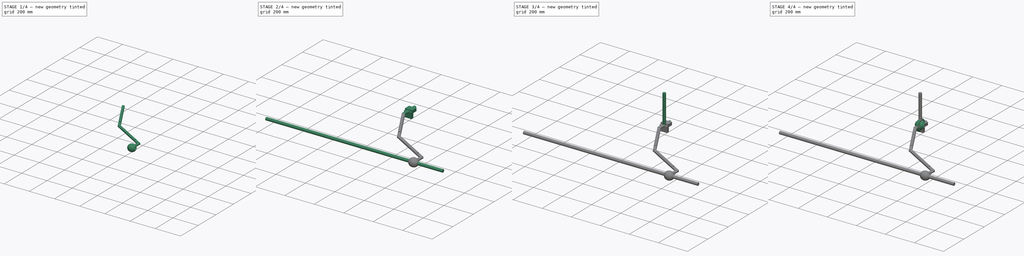
[diagram: build sequence overview — one tinted view per stage of 4, left to right]
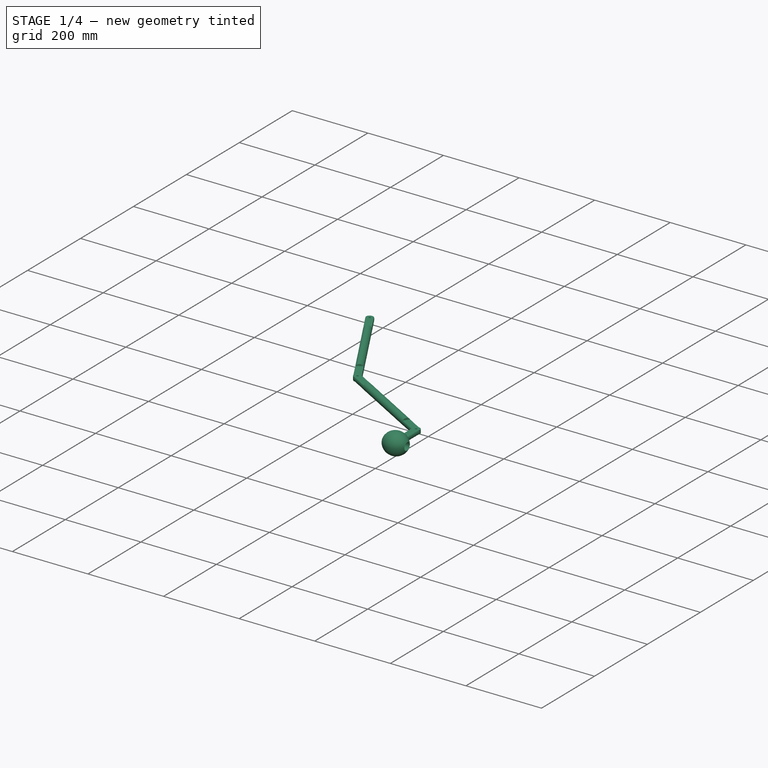
[diagram: stage 1 of 4 — iso view after this stage's code; geometry added in this stage tinted green]
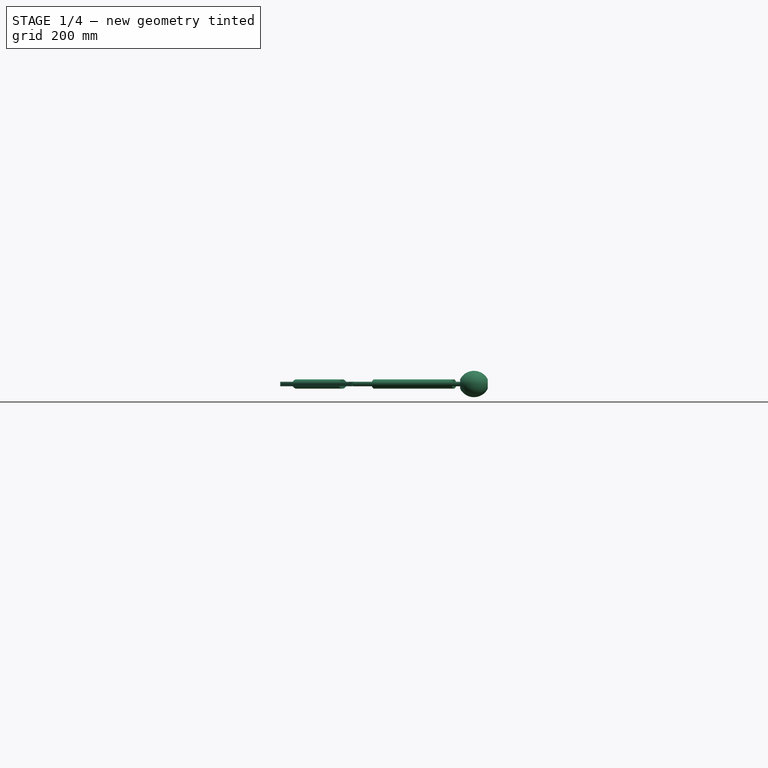
[diagram: stage 1 of 4 — front view after this stage's code; geometry added in this stage tinted green]
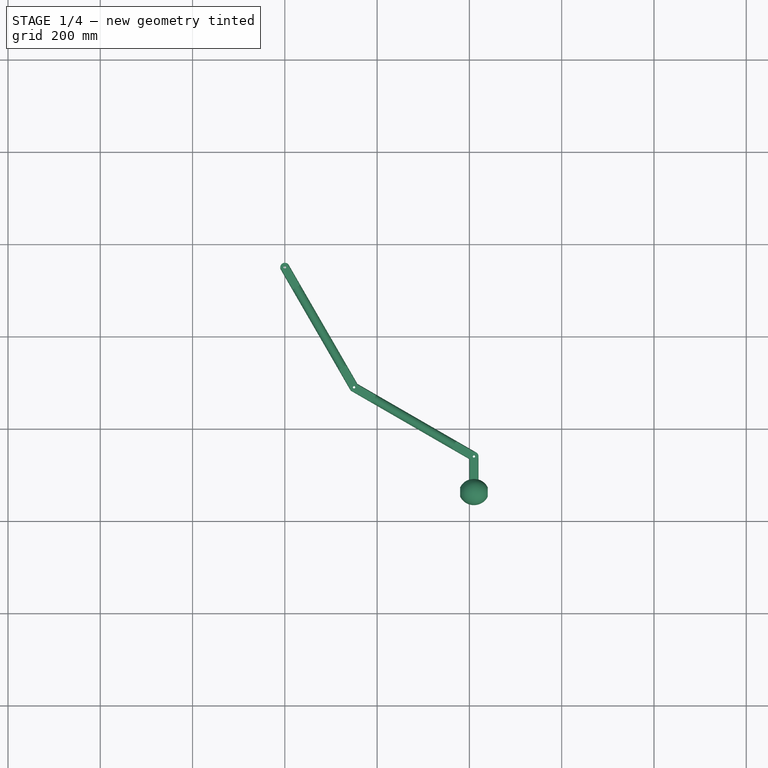
[diagram: stage 1 of 4 — top view after this stage's code; geometry added in this stage tinted green]
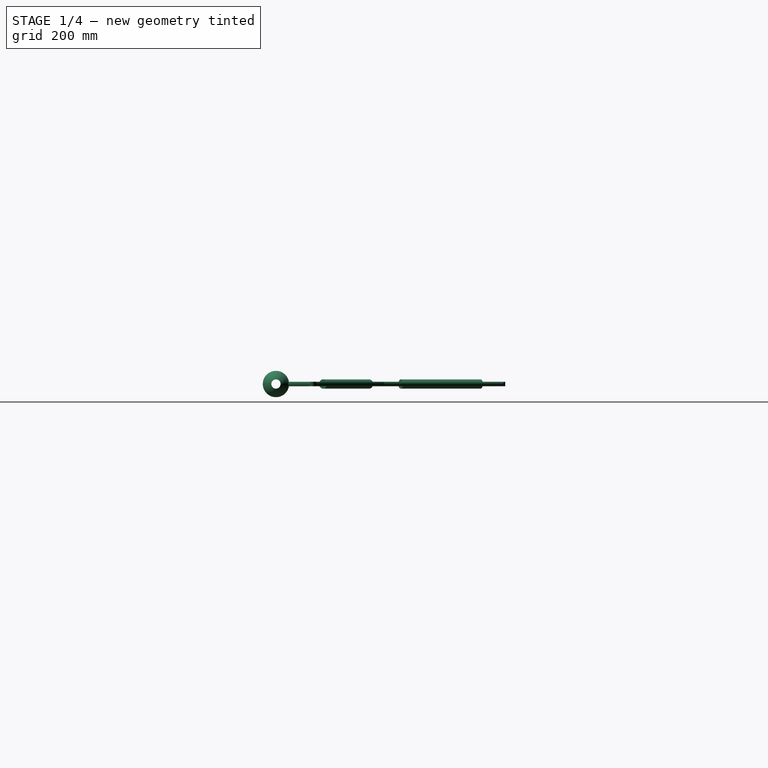
[diagram: stage 1 of 4 — right view after this stage's code; geometry added in this stage tinted green]
FCSTD DOCUMENT  (FreeCAD 0.21R33771 (Git))
Label: Demo7Rigid
License: All rights reserved
LicenseURL: http://en.wikipedia.org/wiki/All_rights_reserved
objects: App::Link×16, PartDesign::CoordinateSystem×13, Part::FeaturePython×10, Sketcher::SketchObject×7, PartDesign::Body×7, PartDesign::Pad×5, App::DocumentObjectGroup×3, PartDesign::Revolution×2, PartDesign::Boolean×1, App::FeaturePython×1, App::Part×1, App::DocumentObjectGroupPython×1
note: 52 computed .brp shape members not serialized (recipe doc carries the construction recipe); baked Part::Feature solids carry a one-line shape summary decoded from their .brp

FEATURE [Part::FeaturePython] DapBody001  label="PendulumRod"  # WARN: FeaturePython — macro-defined, semantics opaque (R4)
  Mass = 0.084669
  ass4SolidsLabels = LugPendulumTop | Pendulum | LugPendulumBot
  ass4SolidsNames = LugPendulumTop | Pendulum | LugPendulumBot
  centreOfGravity = (75,-179.904,0)
  momentInertia = 579.516
  phiDot = 0
  pointLabels = LugPendulumTop-{LugHole}-{LugRot30}-LugPendulumTop-{LugRot60} | LugPendulumTop-{LugFace}-Pendulum-{RodTop} | Pendulum-{Pendulum}-{RodBottom}-LugPendulumBot-{LugPendulumBot}-{LugFace} | LugPendulumBot-{LugHole}-{LugRot30}-LugPendulumBot-{LugRot60}
  pointLocals = (4) [(0,50,5),(0,1.518e-31,3.3396e-47),(-7.10543e-15,-200,-1.64652e-14),(-3.55271e-14,-250,5)]
  pointNames = LugPendulumTop-{LugHole}-{LugRot30}-LugPendulumTop-{LugRot60} | LugPendulumTop-{LugFace}-Pendulum-{RodTop} | Pendulum-{Pendulum}-{RodBottom}-LugPendulumBot-{LugPendulumBot}-{LugFace} | LugPendulumBot-{LugHole}-{LugRot30}-LugPendulumBot-{LugRot60}
  weightVector = (0,-830.603,0)
  world = pos=(25,-93.3013,4.53e-14) rot=(0.258819,-0.965926,0;3.14159rad)
  worldDot = (0,0,0)
FEATURE [Part::FeaturePython] DapBody002  label="PushRod"  # WARN: FeaturePython — macro-defined, semantics opaque (R4)
  Mass = 0.084669
  ass4SolidsLabels = LugPushrodTop | Pushrod | LugPushRodBot
  ass4SolidsNames = LugPushrodTop | Pushrod | LugPushRodBot
  centreOfGravity = (279.904,-384.808,0)
  momentInertia = 579.516
  phiDot = 0
  pointLabels = LugPushrodTop-{LugHole}-{LugRot30}-LugPushrodTop-{LugRot60} | LugPushrodTop-{LugFace}-Pushrod-{RodTop} | Pushrod-{Pushrod}-{RodBottom}-LugPushRodBot-{LugPushRodBot}-{LugFace} | LugPushRodBot-{LugHole}-{LugRot30}-LugPushRodBot-{LugRot60}
  pointLocals = (4) [(0,50,5),(0,1.518e-31,3.3396e-47),(1.13687e-13,-200,-3.50804e-14),(1.7053e-13,-250,5)]
  pointNames = LugPushrodTop-{LugHole}-{LugRot30}-LugPushrodTop-{LugRot60} | LugPushrodTop-{LugFace}-Pushrod-{RodTop} | Pushrod-{Pushrod}-{RodBottom}-LugPushRodBot-{LugPushRodBot}-{LugFace} | LugPushRodBot-{LugHole}-{LugRot30}-LugPushRodBot-{LugRot60}
  weightVector = (0,-830.603,0)
  world = pos=(193.301,-334.808,1.661e-13) rot=(-0.5,0.866025,0;3.14159rad)
  worldDot = (0,0,0)
FEATURE [Part::FeaturePython] DapBody003  label="Slider"  # WARN: FeaturePython — macro-defined, semantics opaque (R4)
  Mass = 0.0990232
  ass4SolidsLabels = LugWeight | SlideWeight
  ass4SolidsNames = LugWeight | SlideWeight
  centreOfGravity = (409.808,-530.666,0)
  momentInertia = 65.9056
  phiDot = 0
  pointLabels = LugWeight-{LugHole}-{LugRot30}-LugWeight-{LugRot60} | LugWeight-{LugFace} | SlideWeight-{SlideWeight}-{WeightLCS} | SlideWeight-{WeightTop} | SlideWeight-{WeightBot}
  pointLocals = (5) [(0,50,5),(0,1.518e-31,3.3396e-47),(0,-27,-3.2e-15),(30,-27,-1.11098e-14),(-30,-27,2.93342e-15)]
  pointNames = LugWeight-{LugHole}-{LugRot30}-LugWeight-{LugRot60} | LugWeight-{LugFace} | SlideWeight-{SlideWeight}-{WeightLCS} | SlideWeight-{WeightTop} | SlideWeight-{WeightBot}
  weightVector = (0,-971.418,0)
  world = pos=(409.808,-509.808,2.958e-13) rot=(0,-1,0;3.14159rad)
  worldDot = (0,0,0)
FEATURE [Part::FeaturePython] DapMaterial  # WARN: FeaturePython — macro-defined, semantics opaque (R4)
  kgm3ORgcm3 = true
  materialsDensityList = [1000,1000,1000,1000,1000,1000,1000,1000,1000,1000,1000,1000,1000,1000,1000,1000]
  materialsNameList = Default | Default | Default | Default | Default | Default | Default | Default | Default | Default | Default | Default | Default | Default | Default | Default
  solidsNameList = GroundStationary | LugGround | LugPendulumTop | Pendulum | LugPendulumBot | LugPushrodTop | Pushrod | LugPushRodBot | LugWeight | SlideWeight | RodA | RodB | RodC | RodD | RodE | RodF
FEATURE [Part::FeaturePython] DapForce  # WARN: FeaturePython — macro-defined, semantics opaque (R4)
  DampingCoeff = 0
  ForceMagnitude = 0
  LengthAngle0 = 0
  Stiffness = 0
  TorqueMagnitude = 0
  actuatorType = 0
  body_I_Index = 0
  body_I_Label = DapBody
  body_I_Name = DapBody
  body_J_Index = 0
  body_J_Label = DapBody
  body_J_Name = DapBody
  constLocalForce = (0,0,0)
  constTorque = 0
  constWorldForce = (0,0,0)
  newForce = false
  point_I_i_Index = 0
  point_I_i_Label = GroundStationary-{GroundLCS}-LugGround-{LugGround}-{LugFace}
  point_I_i_Name = GroundStationary-{GroundLCS}-LugGround-{LugGround}-{LugFace}
  point_J_i_Index = 0
  point_J_i_Label = GroundStationary-{GroundLCS}-LugGround-{LugGround}-{LugFace}
  point_J_i_Name = GroundStationary-{GroundLCS}-LugGround-{LugGround}-{LugFace}
  point_J_j_Index = 0
FEATURE [Part::FeaturePython] DapJoint  # Assembly joint (typed FeaturePython)
  Coeff0 = 0
  Coeff1 = 0
  Coeff2 = 0
  Coeff3 = 0
  Coeff4 = 0
  Coeff5 = 0
  FunctType = -1
  JointNumber = 0
  JointType = 4 (Ball)
  Radius = -1
  body_I_Index = 2
  body_I_Label = PushRod
  body_I_Name = DapBody002
  body_J_Index = 3
  body_J_Label = Slider
  body_J_Name = DapBody003
  d0 = (145.858,129.904,0)
  endDerivativeDriveFunc = 0
  endTimeDriveFunc = 0
  endValueDriveFunc = 0
  fixDof = false
  lengthLink = -1.137e-13
  mConstraints = 3
  nMovBodies = 2
  phi0 = -2.0944
  point_I_i_Index = 3
  point_I_i_Label = LugPushRodBot-{LugHole}-{LugRot30}-LugPushRodBot-{LugRot60}
  point_I_i_Name = LugPushRodBot-{LugHole}-{LugRot30}-LugPushRodBot-{LugRot60}
  point_I_j_Index = -1
  point_J_i_Index = 0
  point_J_i_Label = LugWeight-{LugHole}-{LugRot30}-LugWeight-{LugRot60}
  point_J_i_Name = LugWeight-{LugHole}-{LugRot30}-LugWeight-{LugRot60}
  point_J_j_Index = -1
  rowEnd = 3
  rowStart = 0
  startTimeDriveFunc = 0
  startValueDriveFunc = 0
  world0 = (0,0,0)
FEATURE [Part::FeaturePython] DapJoint001  # Assembly joint (typed FeaturePython)
  Coeff0 = 0
  Coeff1 = 0
  Coeff2 = 0
  Coeff3 = 0
  Coeff4 = 0
  Coeff5 = 0
  FunctType = -1
  JointNumber = 1
  JointType = 0 (Fixed)
  Radius = -1
  body_I_Index = 0
  body_I_Label = Stationary
  body_I_Name = DapBody
  body_J_Index = 1
  body_J_Label = PendulumRod
  body_J_Name = DapBody001
  d0 = (0,0,0)
  endDerivativeDriveFunc = 0
  endTimeDriveFunc = 0
  endValueDriveFunc = 0
  fixDof = false
  lengthLink = 0
  mConstraints = 2
  nMovBodies = 2
  phi0 = -1
  point_I_i_Index = 1
  point_I_i_Label = LugGround-{LugHole}-{LugRot30}-LugGround-{LugRot60}
  point_I_i_Name = LugGround-{LugHole}-{LugRot30}-LugGround-{LugRot60}
  point_I_j_Index = -1
  point_J_i_Index = 0
  point_J_i_Label = LugPendulumTop-{LugHole}-{LugRot30}-LugPendulumTop-{LugRot60}
  point_J_i_Name = LugPendulumTop-{LugHole}-{LugRot30}-LugPendulumTop-{LugRot60}
  point_J_j_Index = -1
  rowEnd = 5
  rowStart = 3
  startTimeDriveFunc = 0
  startValueDriveFunc = 0
  world0 = (0,0,0)
FEATURE [Part::FeaturePython] DapJoint002  # Assembly joint (typed FeaturePython)
  Coeff0 = 0
  Coeff1 = 0
  Coeff2 = 0
  Coeff3 = 0
  Coeff4 = 0
  Coeff5 = 0
  FunctType = -1
  JointNumber = 2
  JointType = 0 (Fixed)
  Radius = -1
  body_I_Index = 1
  body_I_Label = PendulumRod
  body_I_Name = DapBody001
  body_J_Index = 2
  body_J_Label = PushRod
  body_J_Name = DapBody002
  d0 = (0,0,0)
  endDerivativeDriveFunc = 0
  endTimeDriveFunc = 0
  endValueDriveFunc = 0
  fixDof = false
  lengthLink = 5.68e-14
  mConstraints = 2
  nMovBodies = 2
  phi0 = -1
  point_I_i_Index = 3
  point_I_i_Label = LugPendulumBot-{LugHole}-{LugRot30}-LugPendulumBot-{LugRot60}
  point_I_i_Name = LugPendulumBot-{LugHole}-{LugRot30}-LugPendulumBot-{LugRot60}
  point_I_j_Index = -1
  point_J_i_Index = 0
  point_J_i_Label = LugPushrodTop-{LugHole}-{LugRot30}-LugPushrodTop-{LugRot60}
  point_J_i_Name = LugPushrodTop-{LugHole}-{LugRot30}-LugPushrodTop-{LugRot60}
  point_J_j_Index = -1
  rowEnd = 7
  rowStart = 5
  startTimeDriveFunc = 0
  startValueDriveFunc = 0
  world0 = (0,0,0)
FEATURE [Part::FeaturePython] DapSolver  # WARN: FeaturePython — macro-defined, semantics opaque (R4)
  BodyCoG = (3) [(75,-179.904,0),(279.904,-384.808,0),(409.808,-530.666,0)]
  BodyNames = DapBody001 | DapBody002 | DapBody003
  DapResultsValid = true
  DeltaTime = 0.1
  Directory = <userpath>/Desktop
  FileName = -
  TimeLength = 10
FEATURE [App::DocumentObjectGroupPython] DapContainer  # scripted group (container) (typed FeaturePython)
  Group = -> [DapBody,DapBody001,DapBody002,DapBody003,DapMaterial,DapForce,DapJoint,DapJoint001,DapJoint002,DapSolver]
  activeContainer = true
  gravityValid = true
  gravityVector = (0,-9810,0)
  movementPlaneNormal = (0,0,1)
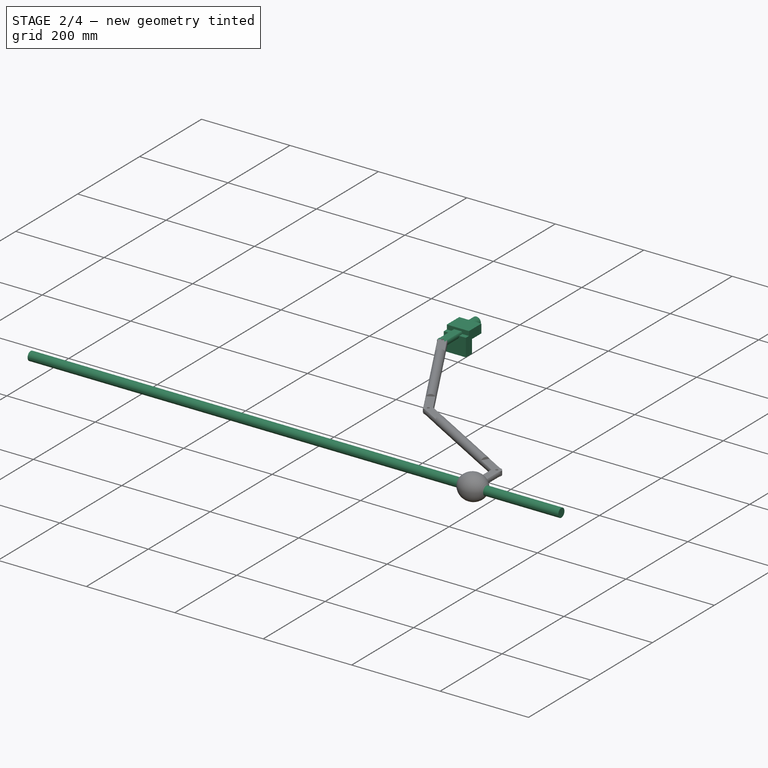
[diagram: stage 2 of 4 — iso view after this stage's code; geometry added in this stage tinted green]
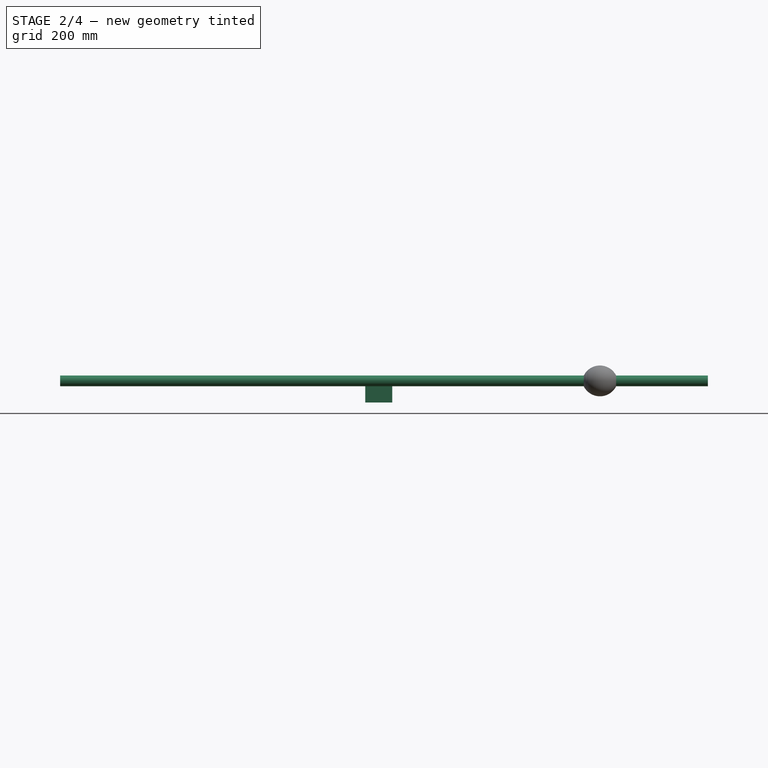
[diagram: stage 2 of 4 — front view after this stage's code; geometry added in this stage tinted green]
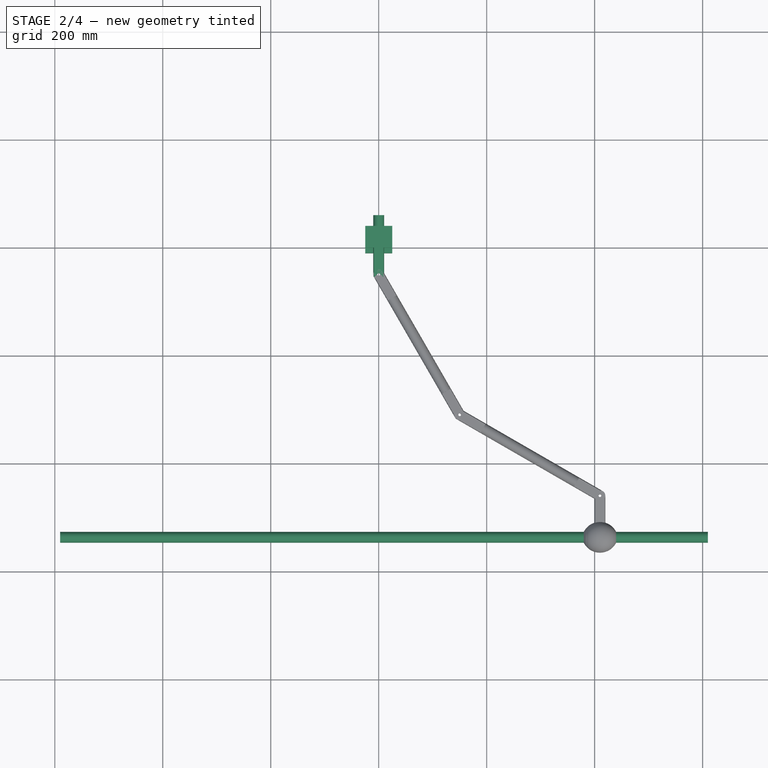
[diagram: stage 2 of 4 — top view after this stage's code; geometry added in this stage tinted green]
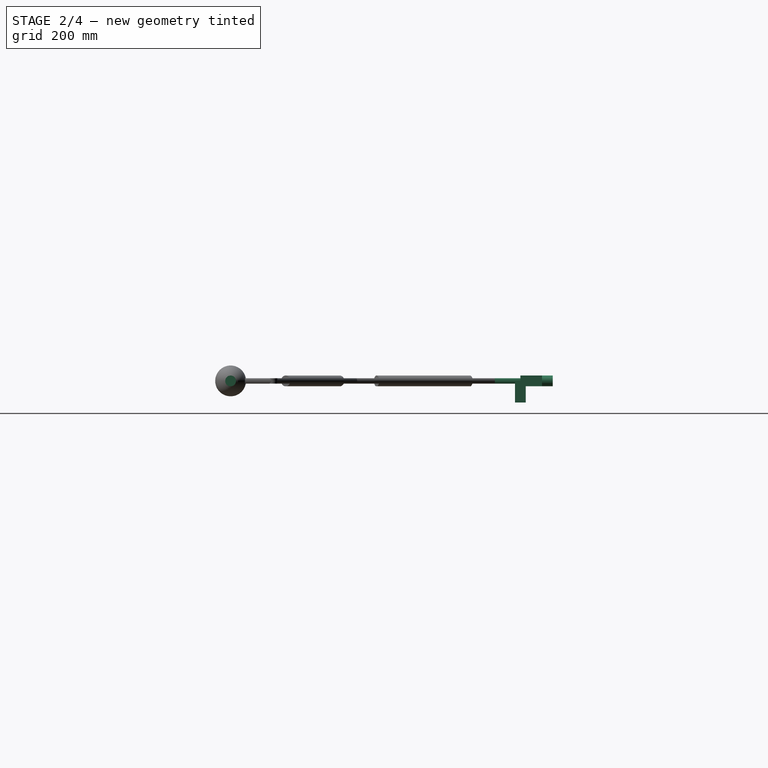
[diagram: stage 2 of 4 — right view after this stage's code; geometry added in this stage tinted green]
FEATURE [PartDesign::Body] Body002  label="LugBody"
  Group = -> [Sketch002,Pad001]
  Origin = -> Origin002
  Tip = -> Pad001
FEATURE [Sketcher::SketchObject] Sketch003
  FullyConstrained = true
  MapMode = 5
  Placement = pos=(0,0,0) rot=(1,0,0;1.5708rad)
  Support = -> [XZ_Plane003]
  sketch-geometry (1):
    g0: Circle CenterX=0 CenterY=0 CenterZ=0 NormalX=0 NormalY=0 NormalZ=1 AngleXU=0 Radius=10
  constraints (2):
    c: Coincident(g0,g-1)
    c: Diameter(g0) = 20
FEATURE [PartDesign::Pad] Pad002
  Direction = (0,-1,-2e-16)
  Length = 60
  Length2 = 10
  Placement = pos=(0,0,0) rot=(1,0,0;1.5708rad)
  Profile = -> Sketch003
  ReferenceAxis = -> Sketch003 [N_Axis]
  Reversed = true
  Type = 0
FEATURE [Sketcher::SketchObject] Sketch005
  FullyConstrained = true
  MapMode = 5
  Support = -> [XY_Plane005]
  sketch-geometry (4):
    g0: LineSegment StartX=-25 StartY=10 StartZ=0 EndX=25 EndY=10 EndZ=0
    g1: LineSegment StartX=25 StartY=10 StartZ=0 EndX=25 EndY=-10 EndZ=0
    g2: LineSegment StartX=25 StartY=-10 StartZ=0 EndX=-25 EndY=-10 EndZ=0
    g3: LineSegment StartX=-25 StartY=-10 StartZ=0 EndX=-25 EndY=10 EndZ=0
  constraints (11):
    c: Coincident(g0,g1)
    c: Coincident(g1,g2)
    c: Coincident(g2,g3)
    c: Coincident(g3,g0)
    c: Horizontal(g0)
    c: Horizontal(g2)
    c: Vertical(g1)
    c: Vertical(g3)
    c: DistanceY(g2,g0) = 20
    c: DistanceX(g0,g0) = 50
    c: Symmetric(g0,g1,g-1)
FEATURE [PartDesign::Pad] Pad003
  Direction = (0,0,1)
  Length = 40
  Length2 = 10
  Profile = -> Sketch005
  ReferenceAxis = -> Sketch005 [N_Axis]
  Reversed = true
  Type = 0
FEATURE [PartDesign::CoordinateSystem] SpacerTop
  AttacherType = Attacher::AttachEngine3D
  MapMode = 11
  Placement = pos=(0,0,20) rot=(0,0,1;1.5708rad)
  Support = -> [Pad004]
FEATURE [PartDesign::Body] Body006  label="Spacer"
  Group = -> [Sketch006,Pad004,SpacerTop]
  Origin = -> Origin007
  Tip = -> Pad004
FEATURE [PartDesign::CoordinateSystem] WeightTop
  AttacherType = Attacher::AttachEngine3D
  MapMode = 11
  Placement = pos=(30,-1.8e-15,0) rot=(0.707107,0,0.707107;3.14159rad)
  Support = -> [Revolution]
FEATURE [PartDesign::CoordinateSystem] WeightBot
  AttacherType = Attacher::AttachEngine3D
  MapMode = 11
  Placement = pos=(-30,0,0) rot=(0.707107,0,0.707107;3.14159rad)
  Support = -> [Revolution]
FEATURE [PartDesign::CoordinateSystem] LugRot30
  AttacherType = Attacher::AttachEngine3D
  AttachmentOffset = pos=(0,0,0) rot=(0,0,1;0.523599rad)
  MapMode = 11
  Placement = pos=(0,50,5) rot=(0,0,1;2.0944rad)
  Support = -> [Boolean]
FEATURE [PartDesign::CoordinateSystem] LugRot60
  AttacherType = Attacher::AttachEngine3D
  AttachmentOffset = pos=(0,0,0) rot=(0,0,1;1.0472rad)
  MapMode = 11
  Placement = pos=(0,50,5) rot=(0,0,1;2.61799rad)
  Support = -> [Boolean]
FEATURE [PartDesign::Body] Body003  label="LugCylinder"
  Group = -> [Sketch003,Pad002,Boolean,LugHole,LugFace,LugRot30,LugRot60]
  Origin = -> Origin003
  Tip = -> Boolean
FEATURE [PartDesign::CoordinateSystem] WeightLCS
  AttacherType = Attacher::AttachEngine3D
  MapMode = 2
  Support = -> [Body003]
FEATURE [PartDesign::Body] Body  label="Weight"
  Group = -> [Sketch,Revolution,WeightLCS,WeightTop,WeightBot]
  Origin = -> Origin
  Tip = -> Revolution
FEATURE [App::DocumentObjectGroup] Parts
  Group = -> [Body,Body001,Body003,Body004,Body005,Body006]
FEATURE [PartDesign::CoordinateSystem] LCS_Origin
  AttacherType = Attacher::AttachEngine3D
  MapMode = 2
  Support = -> [X_Axis008]
FEATURE [App::DocumentObjectGroup] Constraints
FEATURE [App::FeaturePython] Variables  # WARN: FeaturePython — macro-defined, semantics opaque (R4)
  Type = App::PropertyContainer
FEATURE [App::DocumentObjectGroup] Configurations
FEATURE [App::Link] GroundStationary
  AttachedBy = #GroundLCS
  AttachedTo = Parent Assembly#LCS_Origin
  AttachmentOffset = pos=(0,0,0) rot=(1,0,0;1.5708rad)
  LinkPlacement = pos=(0,40,-6.4e-15) rot=(-1,0,0;1.5708rad)
  LinkedObject = -> Body005
  Placement = pos=(0,40,-6.4e-15) rot=(-1,0,0;1.5708rad)
  SolverId = Asm4EE
  expr: Placement = LCS_Origin.Placement * AttachmentOffset * GroundLCS.Placement ^ -1
FEATURE [App::Link] LugGround
  AttachedBy = #LugFace
  AttachedTo = GroundStationary#GroundLCS
  AttachmentOffset = pos=(0,0,0) rot=(1,0,0;3.14159rad)
  LinkPlacement = pos=(0,0,2.4e-15) rot=(1,0,0;3.14159rad)
  LinkedObject = -> Body003
  Placement = pos=(0,0,2.4e-15) rot=(1,0,0;3.14159rad)
  SolverId = Asm4EE
  expr: Placement = GroundStationary.Placement * GroundLCS.Placement * AttachmentOffset * LugFace.Placement ^ -1
FEATURE [App::Link] LugPendulumTop
  AttachedBy = #LugHole
  AttachedTo = LugGround#LugRot60
  AttachmentOffset = pos=(0,0,0) rot=(0,0,1;1.5708rad)
  LinkPlacement = pos=(25,-93.3013,4.53e-14) rot=(0.258819,-0.965926,0;3.14159rad)
  LinkedObject = -> Body003
  Placement = pos=(25,-93.3013,4.53e-14) rot=(0.258819,-0.965926,0;3.14159rad)
  SolverId = Asm4EE
  expr: Placement = LugGround.Placement * LugRot60.Placement * AttachmentOffset * LugHole.Placement ^ -1
FEATURE [App::Link] Pendulum
  AttachedBy = #RodTop
  AttachedTo = LugPendulumTop#LugFace
  AttachmentOffset = pos=(0,0,0) rot=(0,1,0;3.14159rad)
  LinkPlacement = pos=(125,-266.506,1.327e-13) rot=(-0.447214,-0.774597,-0.447214;1.82348rad)
  LinkedObject = -> Body001
  Placement = pos=(125,-266.506,1.327e-13) rot=(-0.447214,-0.774597,-0.447214;1.82348rad)
  SolverId = Asm4EE
  expr: Placement = LugPendulumTop.Placement * LugFace.Placement * AttachmentOffset * RodTop.Placement ^ -1
FEATURE [App::Link] LugPendulumBot
  AttachedBy = #LugFace
  AttachedTo = Pendulum#RodBottom
  LinkPlacement = pos=(125,-266.506,1.327e-13) rot=(-0.965926,-0.258819,0;3.14159rad)
  LinkedObject = -> Body003
  Placement = pos=(125,-266.506,1.327e-13) rot=(-0.965926,-0.258819,0;3.14159rad)
  SolverId = Asm4EE
  expr: Placement = Pendulum.Placement * RodBottom.Placement * AttachmentOffset * LugFace.Placement ^ -1
FEATURE [App::Link] LugPushrodTop
  AttachedBy = #LugHole
  AttachedTo = LugPendulumBot#LugRot60
  AttachmentOffset = pos=(0,0,0) rot=(0,0,1;1.5708rad)
  LinkPlacement = pos=(193.301,-334.808,1.661e-13) rot=(-0.5,0.866025,0;3.14159rad)
  LinkedObject = -> Body003
  Placement = pos=(193.301,-334.808,1.661e-13) rot=(-0.5,0.866025,0;3.14159rad)
  SolverId = Asm4EE
  expr: Placement = LugPendulumBot.Placement * LugRot60.Placement * AttachmentOffset * LugHole.Placement ^ -1
FEATURE [App::Link] Pushrod
  AttachedBy = #RodTop
  AttachedTo = LugPushrodTop#LugFace
  AttachmentOffset = pos=(0,0,0) rot=(0,1,0;3.14159rad)
  LinkPlacement = pos=(366.506,-434.808,2.383e-13) rot=(0.250563,0.935113,0.250563;4.64535rad)
  LinkedObject = -> Body001
  Placement = pos=(366.506,-434.808,2.383e-13) rot=(0.250563,0.935113,0.250563;4.64535rad)
  SolverId = Asm4EE
  expr: Placement = LugPushrodTop.Placement * LugFace.Placement * AttachmentOffset * RodTop.Placement ^ -1
FEATURE [App::Link] LugPushRodBot
  AttachedBy = #LugFace
  AttachedTo = Pushrod#RodBottom
  LinkPlacement = pos=(366.506,-434.808,2.383e-13) rot=(0.866025,0.5,0;3.14159rad)
  LinkedObject = -> Body003
  Placement = pos=(366.506,-434.808,2.383e-13) rot=(0.866025,0.5,0;3.14159rad)
  SolverId = Asm4EE
  expr: Placement = Pushrod.Placement * RodBottom.Placement * AttachmentOffset * LugFace.Placement ^ -1
FEATURE [App::Link] LugWeight
  AttachedBy = #LugRot60
  AttachedTo = LugPushRodBot#LugRot30
  AttachmentOffset = pos=(0,0,0) rot=(0,0,1;4.71239rad)
  LinkPlacement = pos=(409.808,-509.808,2.958e-13) rot=(0,-1,0;3.14159rad)
  LinkedObject = -> Body003
  Placement = pos=(409.808,-509.808,2.958e-13) rot=(0,-1,0;3.14159rad)
  SolverId = Asm4EE
  expr: Placement = LugPushRodBot.Placement * LugRot30.Placement * AttachmentOffset * LugRot60.Placement ^ -1
FEATURE [App::Link] SlideWeight
  AttachedBy = #WeightLCS
  AttachedTo = LugWeight#LugFace
  AttachmentOffset = pos=(0,0,27) rot=(0,0,1;0rad)
  LinkPlacement = pos=(409.808,-536.808,3.152e-13) rot=(0,-0.707107,0.707107;3.14159rad)
  LinkedObject = -> Body
  Placement = pos=(409.808,-536.808,3.152e-13) rot=(0,-0.707107,0.707107;3.14159rad)
  SolverId = Asm4EE
  expr: Placement = LugWeight.Placement * LugFace.Placement * AttachmentOffset * WeightLCS.Placement ^ -1
FEATURE [App::Link] RodA
  AttachedBy = #RodBottom
  AttachedTo = SlideWeight#WeightLCS
  AttachmentOffset = pos=(0,0,0) rot=(0,1,0;4.71239rad)
  LinkPlacement = pos=(409.808,-536.808,3.152e-13) rot=(-0.707107,0,-0.707107;3.14159rad)
  LinkedObject = -> Body001
  Placement = pos=(409.808,-536.808,3.152e-13) rot=(-0.707107,0,-0.707107;3.14159rad)
  SolverId = Asm4EE
  expr: Placement = SlideWeight.Placement * WeightLCS.Placement * AttachmentOffset * RodBottom.Placement ^ -1
FEATURE [App::Link] RodB
  AttachedBy = #RodTop
  AttachedTo = RodA#RodBottom
  LinkPlacement = pos=(209.808,-536.808,3.152e-13) rot=(-0.707107,0,-0.707107;3.14159rad)
  LinkedObject = -> Body001
  Placement = pos=(209.808,-536.808,3.152e-13) rot=(-0.707107,0,-0.707107;3.14159rad)
  SolverId = Asm4EE
  expr: Placement = RodA.Placement * RodBottom.Placement * AttachmentOffset * RodTop.Placement ^ -1
FEATURE [App::Link] RodC
  AttachedBy = #RodTop
  AttachedTo = RodB#RodBottom
  LinkPlacement = pos=(9.80762,-536.808,3.152e-13) rot=(-0.707107,0,-0.707107;3.14159rad)
  LinkedObject = -> Body001
  Placement = pos=(9.80762,-536.808,3.152e-13) rot=(-0.707107,0,-0.707107;3.14159rad)
  SolverId = Asm4EE
  expr: Placement = RodB.Placement * RodBottom.Placement * AttachmentOffset * RodTop.Placement ^ -1
FEATURE [App::Link] RodD
  AttachedBy = #RodTop
  AttachedTo = RodC#RodBottom
  LinkPlacement = pos=(-190.192,-536.808,3.152e-13) rot=(-0.707107,0,-0.707107;3.14159rad)
  LinkedObject = -> Body001
  Placement = pos=(-190.192,-536.808,3.152e-13) rot=(-0.707107,0,-0.707107;3.14159rad)
  SolverId = Asm4EE
  expr: Placement = RodC.Placement * RodBottom.Placement * AttachmentOffset * RodTop.Placement ^ -1
FEATURE [App::Link] RodE
  AttachedBy = #RodTop
  AttachedTo = RodD#RodBottom
  LinkPlacement = pos=(-390.192,-536.808,3.152e-13) rot=(-0.707107,0,-0.707107;3.14159rad)
  LinkedObject = -> Body001
  Placement = pos=(-390.192,-536.808,3.152e-13) rot=(-0.707107,0,-0.707107;3.14159rad)
  SolverId = Asm4EE
  expr: Placement = RodD.Placement * RodBottom.Placement * AttachmentOffset * RodTop.Placement ^ -1
FEATURE [App::Link] RodF
  AttachedBy = #RodTop
  AttachedTo = RodE#RodBottom
  LinkPlacement = pos=(-590.192,-536.808,3.152e-13) rot=(-0.707107,0,-0.707107;3.14159rad)
  LinkedObject = -> Body001
  Placement = pos=(-590.192,-536.808,3.152e-13) rot=(-0.707107,0,-0.707107;3.14159rad)
  SolverId = Asm4EE
  expr: Placement = RodE.Placement * RodBottom.Placement * AttachmentOffset * RodTop.Placement ^ -1
FEATURE [App::Part] Assembly
  AssemblyType = Part::Link
  Group = -> [LCS_Origin,Constraints,Variables,Configurations,GroundStationary,LugGround,LugPendulumTop,Pendulum,LugPendulumBot,LugPushrodTop,Pushrod,LugPushRodBot,LugWeight,SlideWeight,RodA,RodB,RodC,RodD,RodE,RodF]
  Origin = -> Origin008
  Type = Assembly
FEATURE [Part::FeaturePython] DapBody  label="Stationary"  # WARN: FeaturePython — macro-defined, semantics opaque (R4)
  Mass = 0.42791
  ass4SolidsLabels = GroundStationary | LugGround | RodA | RodB | RodC | RodD | RodE | RodF
  ass4SolidsNames = GroundStationary | LugGround | RodA | RodB | RodC | RodD | RodE | RodF
  centreOfGravity = (8.64058,-471.794,0)
  momentInertia = 58681.3
  phiDot = 0
  pointLabels = GroundStationary-{GroundLCS}-LugGround-{LugGround}-{LugFace} | LugGround-{LugHole}-{LugRot30}-LugGround-{LugRot60} | RodA-{RodA}-{RodBottom}-RodB-{RodTop} | RodA-{RodTop} | RodB-{RodB}-{RodBottom}-RodC-{RodTop} | RodC-{RodC}-{RodBottom}-RodD-{RodTop} | RodD-{RodD}-{RodBottom}-RodE-{RodTop} | RodE-{RodE}-{RodBottom}-RodF-{RodTop} | RodF-{RodF}-{RodBottom}
  pointLocals = (9) [(0,0,-40),(0,5,-90),(409.808,-1.93523e-13,-576.808),(609.808,-1.49114e-13,-576.808),(209.808,-1.93523e-13,-576.808),(9.80762,-1.93523e-13,-576.808),+3 more]
  pointNames = GroundStationary-{GroundLCS}-LugGround-{LugGround}-{LugFace} | LugGround-{LugHole}-{LugRot30}-LugGround-{LugRot60} | RodA-{RodA}-{RodBottom}-RodB-{RodTop} | RodA-{RodTop} | RodB-{RodB}-{RodBottom}-RodC-{RodTop} | RodC-{RodC}-{RodBottom}-RodD-{RodTop} | RodD-{RodD}-{RodBottom}-RodE-{RodTop} | RodE-{RodE}-{RodBottom}-RodF-{RodTop} | RodF-{RodF}-{RodBottom}
  weightVector = (0,-4197.79,0)
  world = pos=(0,40,-6.4e-15) rot=(-1,0,0;1.5708rad)
  worldDot = (0,0,0)
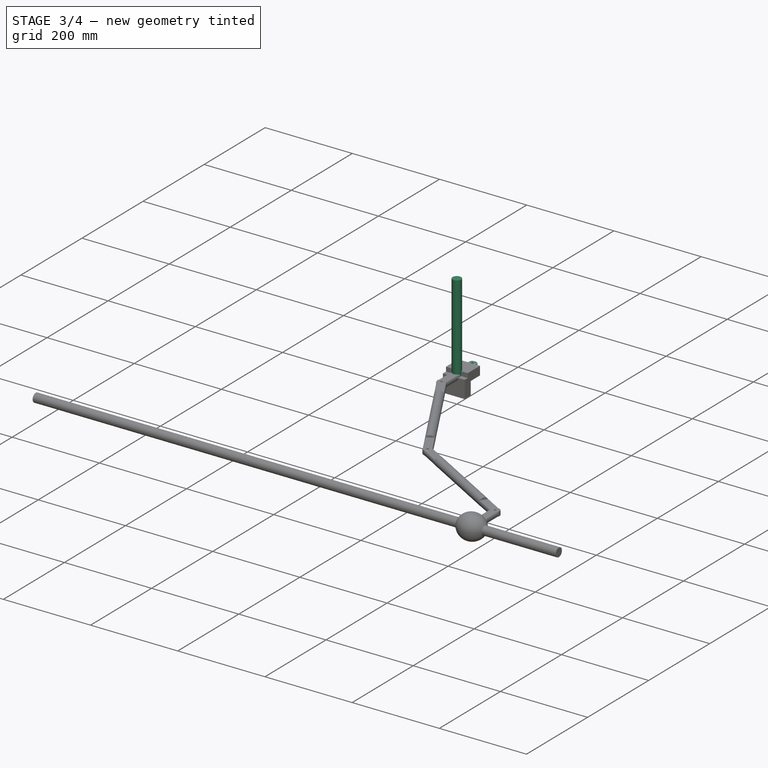
[diagram: stage 3 of 4 — iso view after this stage's code; geometry added in this stage tinted green]
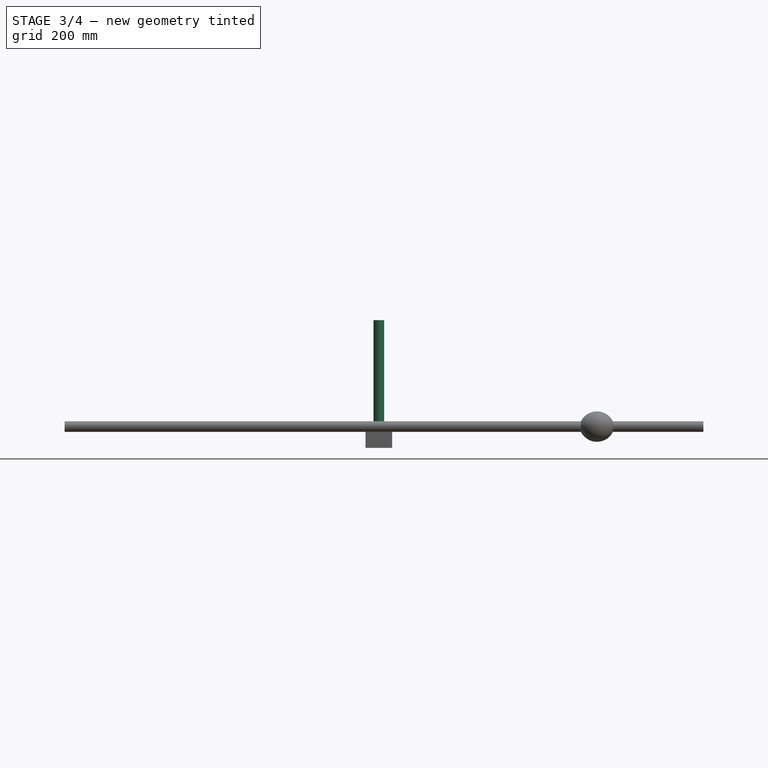
[diagram: stage 3 of 4 — front view after this stage's code; geometry added in this stage tinted green]
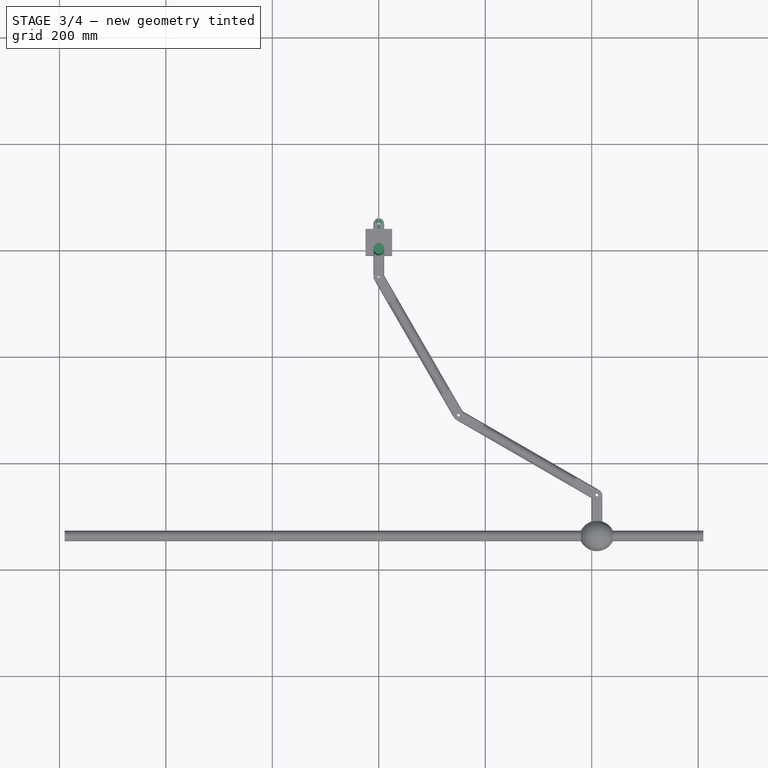
[diagram: stage 3 of 4 — top view after this stage's code; geometry added in this stage tinted green]
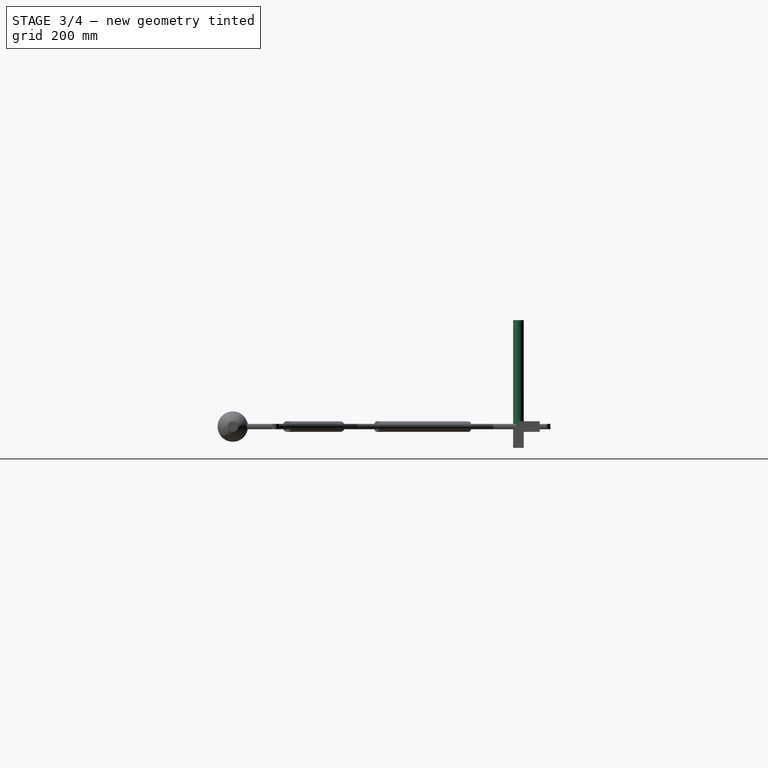
[diagram: stage 3 of 4 — right view after this stage's code; geometry added in this stage tinted green]
FEATURE [Sketcher::SketchObject] Sketch001
  FullyConstrained = true
  MapMode = 5
  Support = -> [XY_Plane001]
  sketch-geometry (1):
    g0: Circle CenterX=0 CenterY=0 CenterZ=0 NormalX=0 NormalY=0 NormalZ=1 AngleXU=0 Radius=10
  constraints (2):
    c: Coincident(g0,g-1)
    c: Diameter(g0) = 20
FEATURE [PartDesign::Pad] Pad
  Direction = (0,0,1)
  Length = 200
  Length2 = 10
  Profile = -> Sketch001
  ReferenceAxis = -> Sketch001 [N_Axis]
  Type = 0
FEATURE [Sketcher::SketchObject] Sketch002
  FullyConstrained = true
  MapMode = 5
  Support = -> [XY_Plane002]
  sketch-geometry (5):
    g0: LineSegment StartX=-10 StartY=0 StartZ=0 EndX=-10 EndY=50 EndZ=0
    g1: ArcOfCircle CenterX=0 CenterY=50 CenterZ=0 NormalX=0 NormalY=0 NormalZ=1 AngleXU=0 Radius=10 StartAngle=1e-16 EndAngle=3.14159
    g2: LineSegment StartX=10 StartY=50 StartZ=0 EndX=10 EndY=0 EndZ=0
    g3: LineSegment StartX=10 StartY=0 StartZ=0 EndX=-10 EndY=0 EndZ=0
    g4: Circle CenterX=0 CenterY=50 CenterZ=0 NormalX=0 NormalY=0 NormalZ=1 AngleXU=0 Radius=2.5
  constraints (13):
    c: PointOnObject(g0,g-1)
    c: Vertical(g0)
    c: Tangent(g0,g1) = 1.5708
    c: Tangent(g1,g2) = 1.5708
    c: Coincident(g2,g3)
    c: Coincident(g3,g0)
    c: Horizontal(g3)
    c: PointOnObject(g1,g-2)
    c: Vertical(g2)
    c: Diameter(g1) = 20
    c: Distance(g2) = 50
    c: Coincident(g4,g1)
    c: Diameter(g4) = 5
FEATURE [PartDesign::Pad] Pad001
  Direction = (0,0,1)
  Length = 10
  Length2 = 10
  Midplane = true
  Profile = -> Sketch002
  ReferenceAxis = -> Sketch002 [N_Axis]
  Type = 0
FEATURE [PartDesign::Boolean] Boolean
  BaseFeature = -> Pad002
  Group = -> [Body002]
  Type = 2
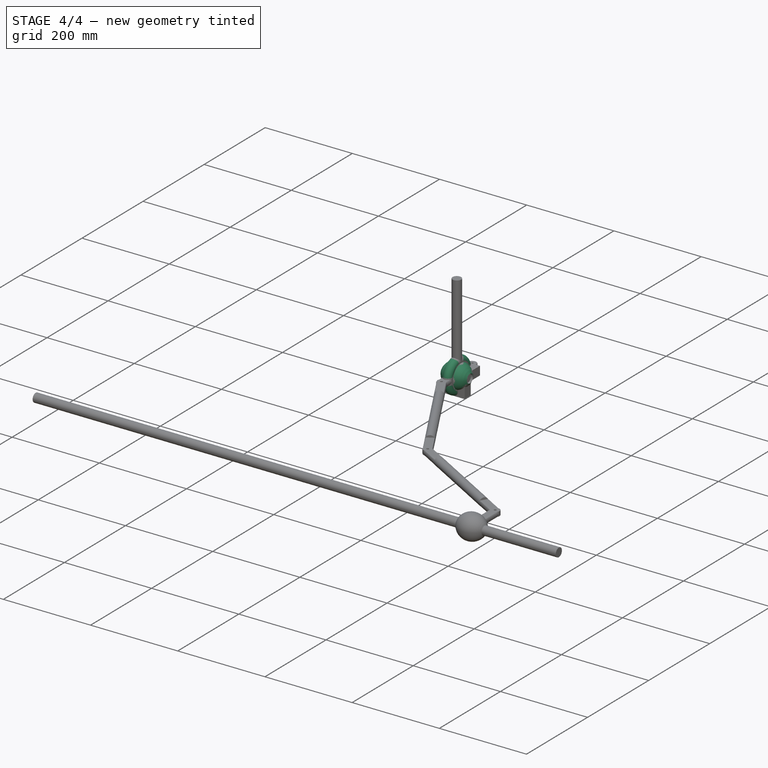
[diagram: stage 4 of 4 — iso view after this stage's code; geometry added in this stage tinted green]
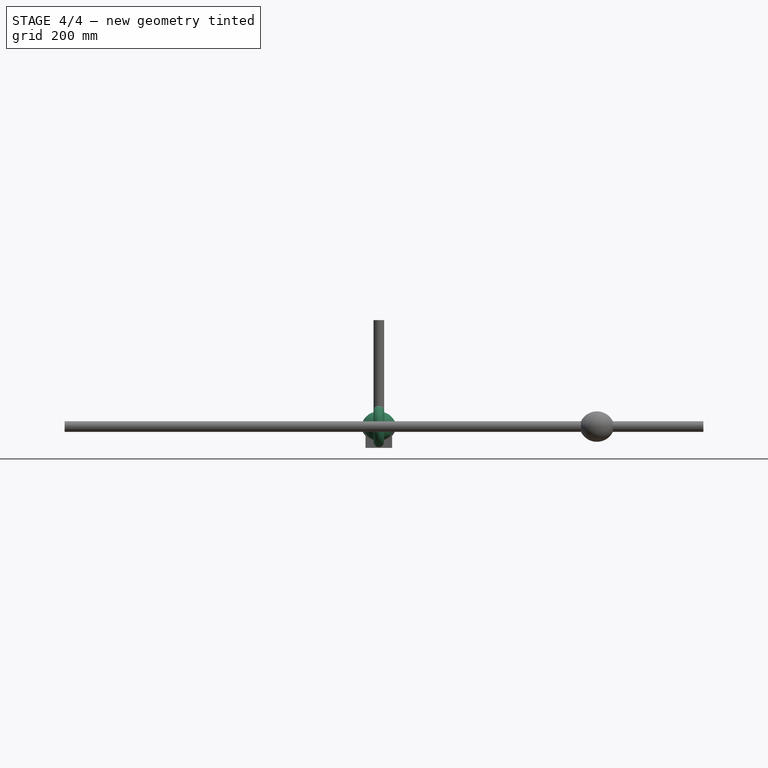
[diagram: stage 4 of 4 — front view after this stage's code; geometry added in this stage tinted green]
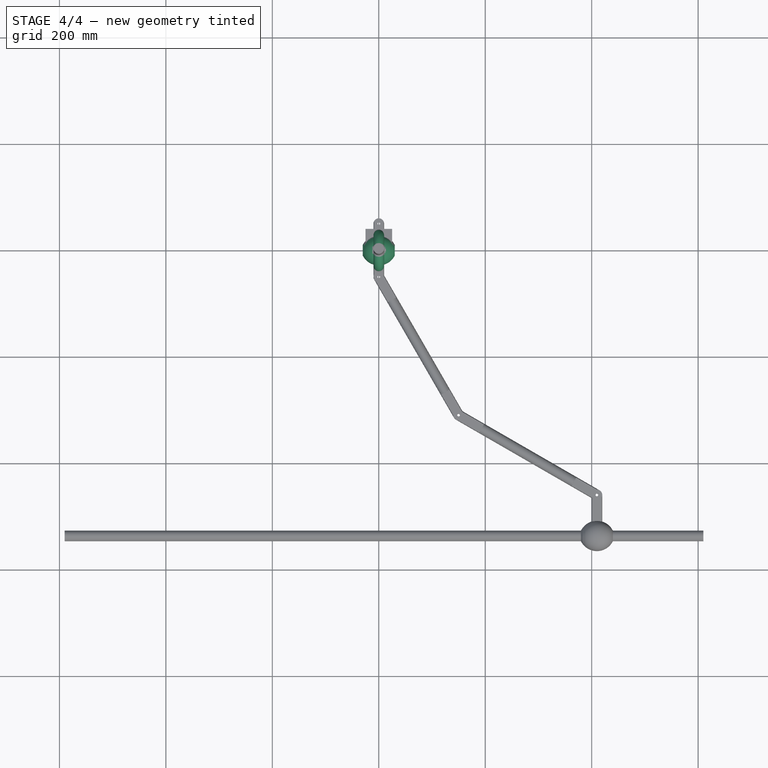
[diagram: stage 4 of 4 — top view after this stage's code; geometry added in this stage tinted green]
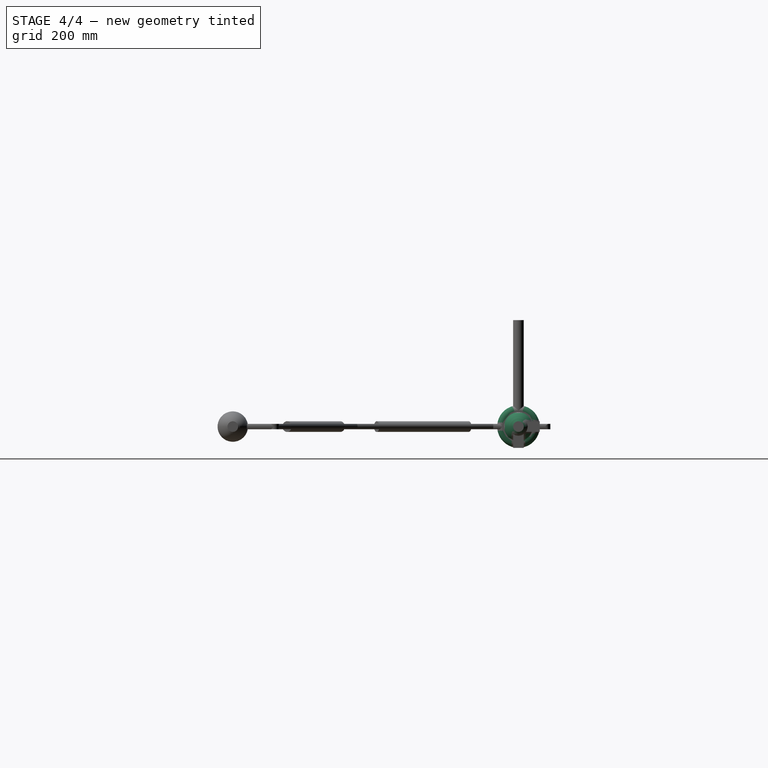
[diagram: stage 4 of 4 — right view after this stage's code; geometry added in this stage tinted green]
FEATURE [Sketcher::SketchObject] Sketch
  FullyConstrained = true
  MapMode = 5
  Support = -> [XY_Plane]
  sketch-geometry (2):
    g0: LineSegment StartX=-30 StartY=10 StartZ=0 EndX=30 EndY=10 EndZ=0
    g1: ArcOfCircle CenterX=0 CenterY=-5 CenterZ=0 NormalX=0 NormalY=0 NormalZ=1 AngleXU=0 Radius=33.541 StartAngle=0.463648 EndAngle=2.67795
  constraints (7):
    c: Horizontal(g0)
    c: DistanceY(g-1,g0) = 10
    c: DistanceX(g-1,g0) = 30
    c: PointOnObject(g1,g-2)
    c: DistanceY(g1,g-1) = 5
    c: Coincident(g1,g0)
    c: Coincident(g1,g0)
FEATURE [PartDesign::Revolution] Revolution
  Angle = 360
  Axis = (1,0,0)
  Base = (0,0,0)
  Profile = -> Sketch
  ReferenceAxis = -> Sketch [H_Axis]
FEATURE [Sketcher::SketchObject] Sketch004
  FullyConstrained = true
  MapMode = 5
  Support = -> [XY_Plane004]
  sketch-geometry (4):
    g0: LineSegment StartX=-10 StartY=0 StartZ=0 EndX=-10 EndY=30 EndZ=0
    g1: ArcOfCircle CenterX=0 CenterY=30 CenterZ=0 NormalX=0 NormalY=0 NormalZ=1 AngleXU=0 Radius=10 StartAngle=2e-16 EndAngle=3.14159
    g2: LineSegment StartX=10 StartY=30 StartZ=0 EndX=10 EndY=0 EndZ=0
    g3: LineSegment StartX=10 StartY=0 StartZ=0 EndX=-10 EndY=0 EndZ=0
  constraints (11):
    c: PointOnObject(g0,g-1)
    c: Vertical(g0)
    c: Tangent(g0,g1) = 1.5708
    c: Tangent(g1,g2) = 1.5708
    c: Coincident(g2,g3)
    c: Coincident(g3,g0)
    c: Vertical(g2)
    c: PointOnObject(g1,g-2)
    c: Diameter(g1) = 20
    c: Distance(g0) = 30
    c: PointOnObject(g2,g-1)
FEATURE [PartDesign::Revolution] Revolution001
  Angle = 360
  Axis = (1,0,0)
  Base = (0,0,0)
  Profile = -> Sketch004
  ReferenceAxis = -> Sketch004 [H_Axis]
FEATURE [PartDesign::CoordinateSystem] RodTop
  AttacherType = Attacher::AttachEngine3D
  MapMode = 11
  Placement = pos=(0,0,200) rot=(0,0,1;1.5708rad)
  Support = -> [Pad]
FEATURE [PartDesign::CoordinateSystem] BobBody  label="BobBody001"
  AttacherType = Attacher::AttachEngine3D
  MapMode = 11
  Placement = pos=(-10,0,0) rot=(0.707107,0,0.707107;3.14159rad)
  Support = -> [Revolution001]
FEATURE [PartDesign::Body] Body004  label="BobBody"
  Group = -> [Sketch004,Revolution001,BobBody]
  Origin = -> Origin004
  Tip = -> Revolution001
FEATURE [PartDesign::CoordinateSystem] GroundLCS
  AttacherType = Attacher::AttachEngine3D
  MapMode = 5
  Placement = pos=(0,0,-40) rot=(1,0,0;3.14159rad)
  Support = -> [Pad003]
FEATURE [PartDesign::Body] Body005  label="GroundBody"
  Group = -> [Sketch005,Pad003,GroundLCS]
  Origin = -> Origin005
  Tip = -> Pad003
FEATURE [PartDesign::CoordinateSystem] RodBottom
  AttacherType = Attacher::AttachEngine3D
  MapMode = 11
  Placement = pos=(0,0,0) rot=(0,0,1;1.5708rad)
  Support = -> [Pad]
FEATURE [PartDesign::Body] Body001  label="Rod"
  Group = -> [Sketch001,Pad,RodTop,RodBottom]
  Origin = -> Origin001
  Tip = -> Pad
FEATURE [PartDesign::CoordinateSystem] LugHole
  AttacherType = Attacher::AttachEngine3D
  MapMode = 11
  Placement = pos=(0,50,5) rot=(0,0,1;1.5708rad)
  Support = -> [Boolean]
FEATURE [PartDesign::CoordinateSystem] LugFace
  AttacherType = Attacher::AttachEngine3D
  MapMode = 5
  Placement = pos=(0,0,0) rot=(1,0,0;1.5708rad)
  Support = -> [Boolean]
FEATURE [Sketcher::SketchObject] Sketch006
  FullyConstrained = true
  MapMode = 5
  Support = -> [XY_Plane007]
  sketch-geometry (2):
    g0: Circle CenterX=0 CenterY=0 CenterZ=0 NormalX=0 NormalY=0 NormalZ=1 AngleXU=0 Radius=10
    g1: Circle CenterX=0 CenterY=0 CenterZ=0 NormalX=0 NormalY=0 NormalZ=1 AngleXU=0 Radius=2.5
  constraints (4):
    c: Coincident(g0,g-1)
    c: Coincident(g1,g0)
    c: Diameter(g0) = 20
    c: Diameter(g1) = 5
FEATURE [PartDesign::Pad] Pad004
  Direction = (0,0,1)
  Length = 20
  Length2 = 10
  Profile = -> Sketch006
  ReferenceAxis = -> Sketch006 [N_Axis]
  Type = 0
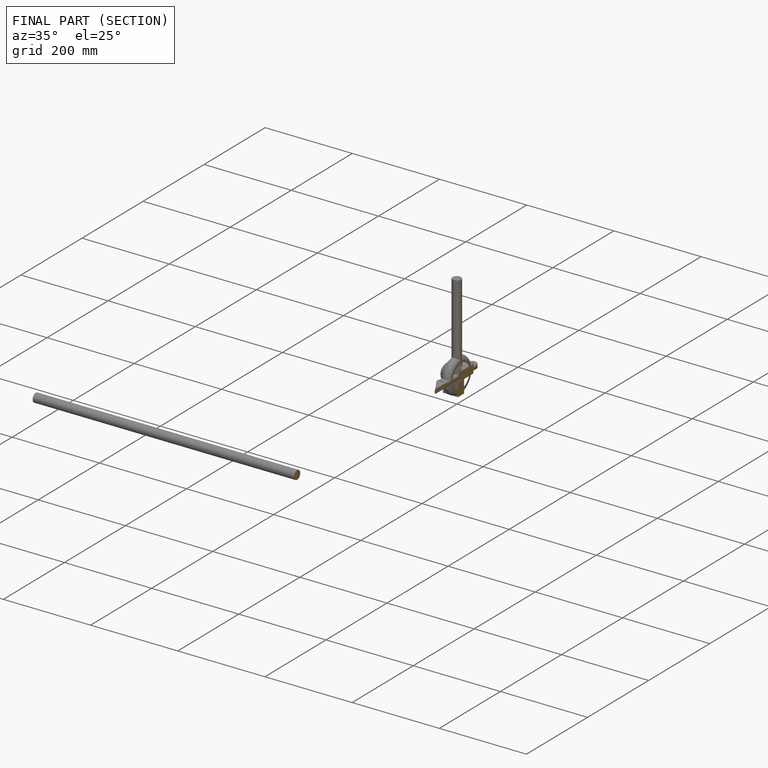
[diagram: finished part — half-section view (interior)]
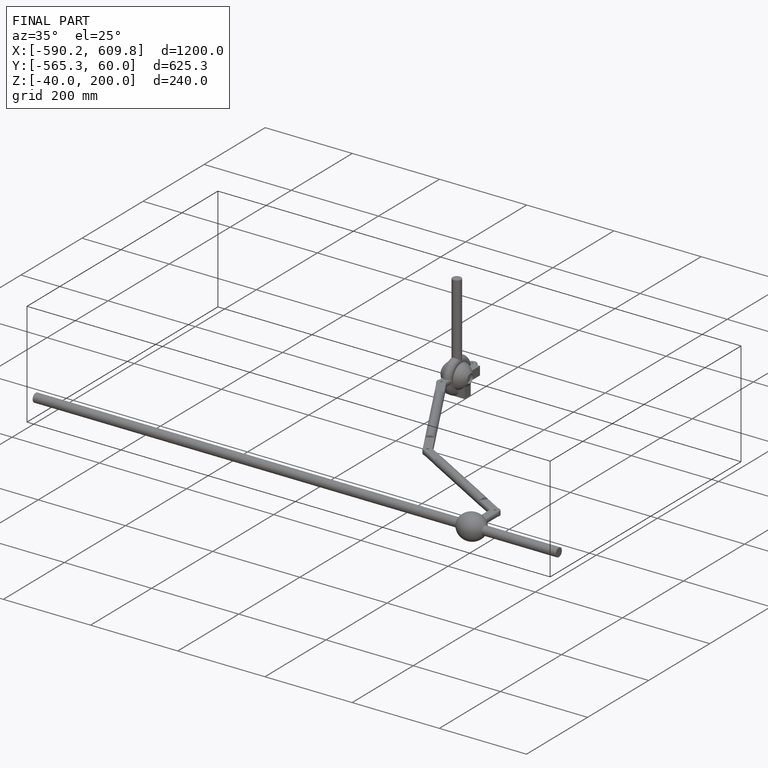
[diagram: finished part — iso view with bounding-box wireframe]
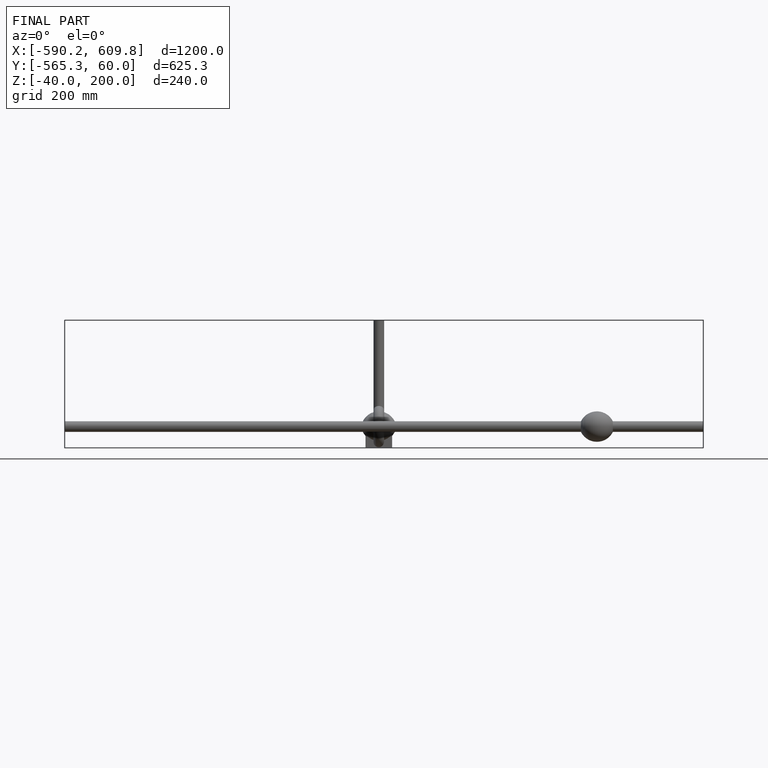
[diagram: finished part — front view with bounding-box wireframe]
